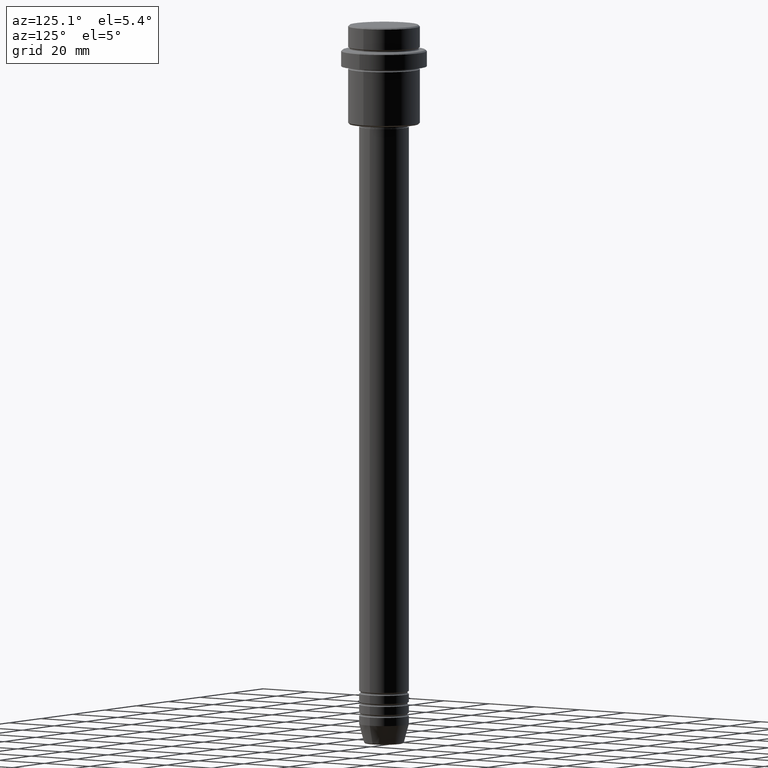
[diagram: clean part render]
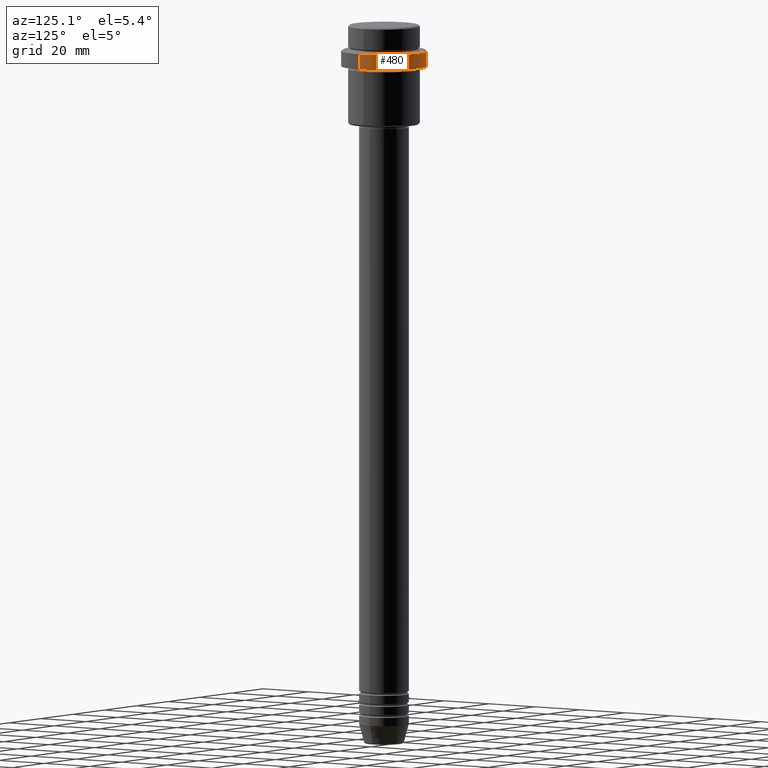
[diagram: same view with one face highlighted and labeled with its STEP entity id]
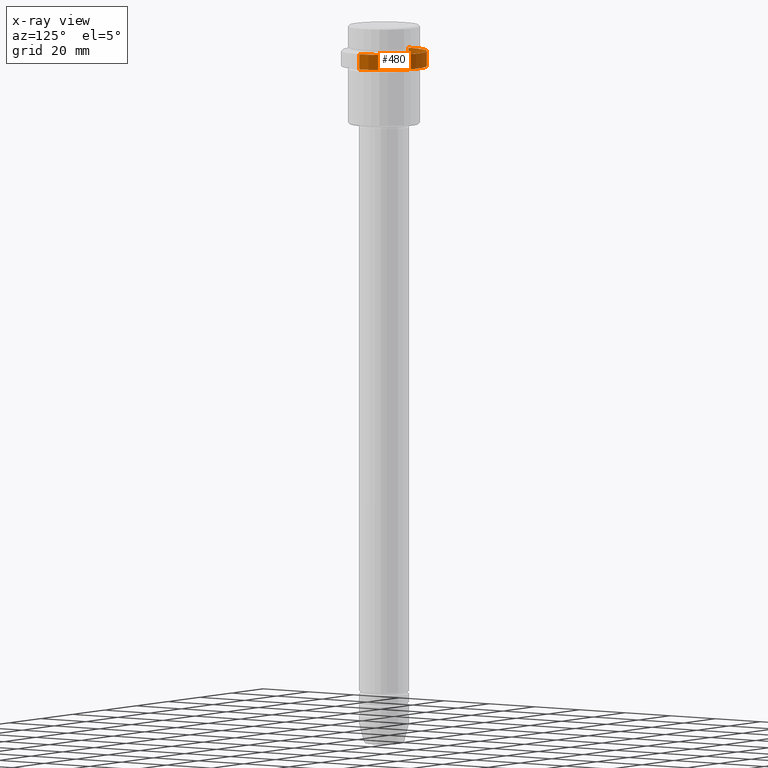
[diagram: x-ray of the same camera — body ghosted, the highlighted face saturated]
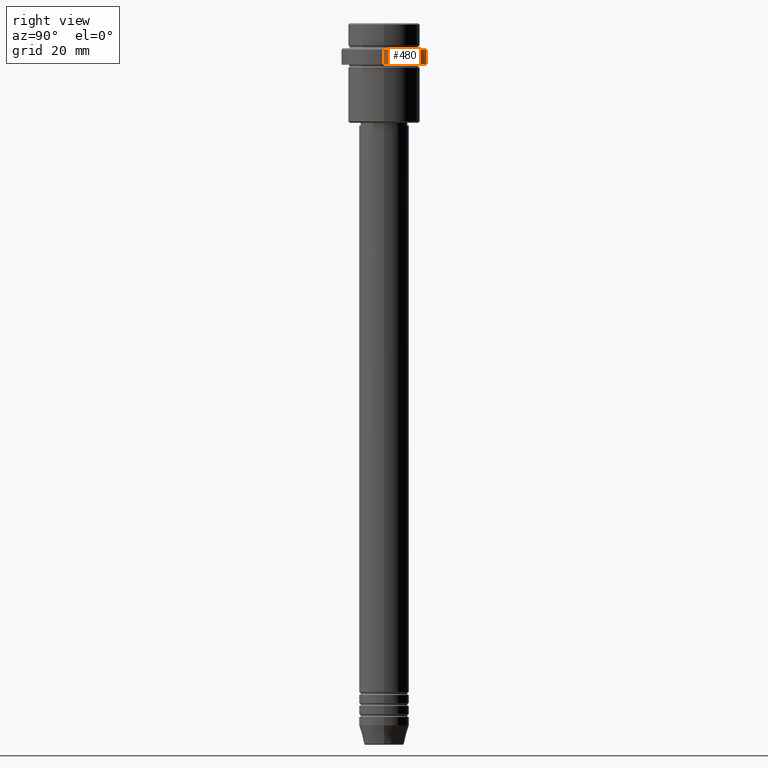
[diagram: same view with one face highlighted and labeled with its STEP entity id]
A machine part, auxiliary view. The second image highlights one B-rep face of the part: STEP entity #480.
The next image is the same camera in x-ray: the body ghosted, the highlighted face saturated — about 0% of this face is hidden behind the body in this view.
A second angle (right view) of the same face is appended — the face is thin or edge-on in the first view.
In plain terms, the highlighted cylindrical surface (partial cylindrical patch) has radius 15.5 mm, axis along (-0, -0, 1).
Its self-contained STEP definition (entity closure, byte-faithful):
#19 = EDGE_CURVE ( 'NONE', #702, #1016, #571, .T. ) ;
#33 = DIRECTION ( 'NONE',  ( -0.000000000000000000, -0.000000000000000000, 1.000000000000000000 ) ) ;
#63 = AXIS2_PLACEMENT_3D ( 'NONE', #96, #189, #424 ) ;
#94 = ORIENTED_EDGE ( 'NONE', *, *, #19, .T. ) ;
#96 = CARTESIAN_POINT ( 'NONE',  ( 0.000000000000000000, 0.000000000000000000, -15.00000000000000000 ) ) ;
#124 = CARTESIAN_POINT ( 'NONE',  ( -15.50000000000000000, 1.898202538678397557E-15, -15.00000000000000000 ) ) ;
#166 = EDGE_LOOP ( 'NONE', ( #422, #94, #835, #267 ) ) ;
#187 = CYLINDRICAL_SURFACE ( 'NONE', #1238, 15.50000000000000000 ) ;
#189 = DIRECTION ( 'NONE',  ( -0.000000000000000000, -0.000000000000000000, 1.000000000000000000 ) ) ;
#209 = EDGE_CURVE ( 'NONE', #745, #702, #1078, .T. ) ;
#252 = CARTESIAN_POINT ( 'NONE',  ( -15.50000000000000000, 1.898202538678397557E-15, 0.000000000000000000 ) ) ;
#267 = ORIENTED_EDGE ( 'NONE', *, *, #832, .F. ) ;
#293 = CARTESIAN_POINT ( 'NONE',  ( 0.000000000000000000, 0.000000000000000000, 0.000000000000000000 ) ) ;
#364 = DIRECTION ( 'NONE',  ( 0.000000000000000000, 0.000000000000000000, -1.000000000000000000 ) ) ;
#381 = VECTOR ( 'NONE', #1111, 1000.000000000000000 ) ;
#394 = CARTESIAN_POINT ( 'NONE',  ( 15.50000000000000000, 0.000000000000000000, 0.000000000000000000 ) ) ;
#403 = FACE_OUTER_BOUND ( 'NONE', #166, .T. ) ;
#408 = CARTESIAN_POINT ( 'NONE',  ( -15.50000000000000000, 1.898202538678397557E-15, -9.500000000000039080 ) ) ;
#409 = CIRCLE ( 'NONE', #1373, 15.50000000000000000 ) ;
#422 = ORIENTED_EDGE ( 'NONE', *, *, #209, .T. ) ;
#424 = DIRECTION ( 'NONE',  ( 1.000000000000000000, 0.000000000000000000, 0.000000000000000000 ) ) ;
#463 = EDGE_CURVE ( 'NONE', #1016, #684, #409, .T. ) ;
#466 = DIRECTION ( 'NONE',  ( 1.000000000000000000, 0.000000000000000000, 0.000000000000000000 ) ) ;
#480 = ADVANCED_FACE ( 'NONE', ( #403 ), #187, .T. ) ;
#571 = LINE ( 'NONE', #252, #381 ) ;
#580 = CARTESIAN_POINT ( 'NONE',  ( 15.50000000000000000, 0.000000000000000000, -15.00000000000000000 ) ) ;
#684 = VERTEX_POINT ( 'NONE', #973 ) ;
#691 = VECTOR ( 'NONE', #958, 1000.000000000000000 ) ;
#702 = VERTEX_POINT ( 'NONE', #124 ) ;
#745 = VERTEX_POINT ( 'NONE', #580 ) ;
#832 = EDGE_CURVE ( 'NONE', #745, #684, #1359, .T. ) ;
#835 = ORIENTED_EDGE ( 'NONE', *, *, #463, .T. ) ;
#958 = DIRECTION ( 'NONE',  ( -0.000000000000000000, -0.000000000000000000, 1.000000000000000000 ) ) ;
#973 = CARTESIAN_POINT ( 'NONE',  ( 15.50000000000000000, 0.000000000000000000, -9.500000000000039080 ) ) ;
#1016 = VERTEX_POINT ( 'NONE', #408 ) ;
#1025 = CARTESIAN_POINT ( 'NONE',  ( 0.000000000000000000, 0.000000000000000000, -9.500000000000039080 ) ) ;
#1078 = CIRCLE ( 'NONE', #63, 15.50000000000000000 ) ;
#1111 = DIRECTION ( 'NONE',  ( -0.000000000000000000, -0.000000000000000000, 1.000000000000000000 ) ) ;
#1132 = DIRECTION ( 'NONE',  ( 1.000000000000000000, 0.000000000000000000, 0.000000000000000000 ) ) ;
#1238 = AXIS2_PLACEMENT_3D ( 'NONE', #293, #33, #466 ) ;
#1359 = LINE ( 'NONE', #394, #691 ) ;
#1373 = AXIS2_PLACEMENT_3D ( 'NONE', #1025, #364, #1132 ) ;